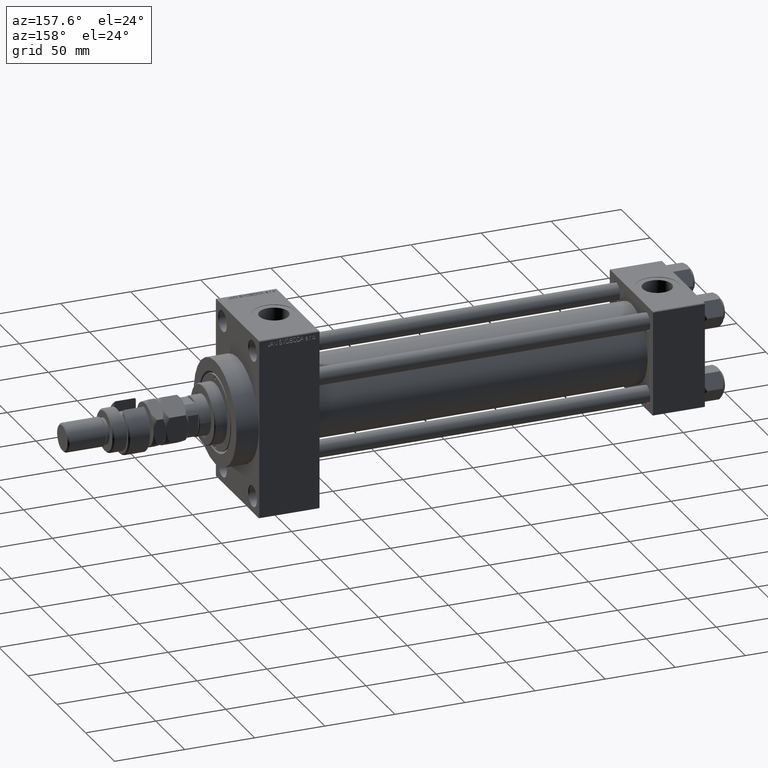
[diagram: clean part render]
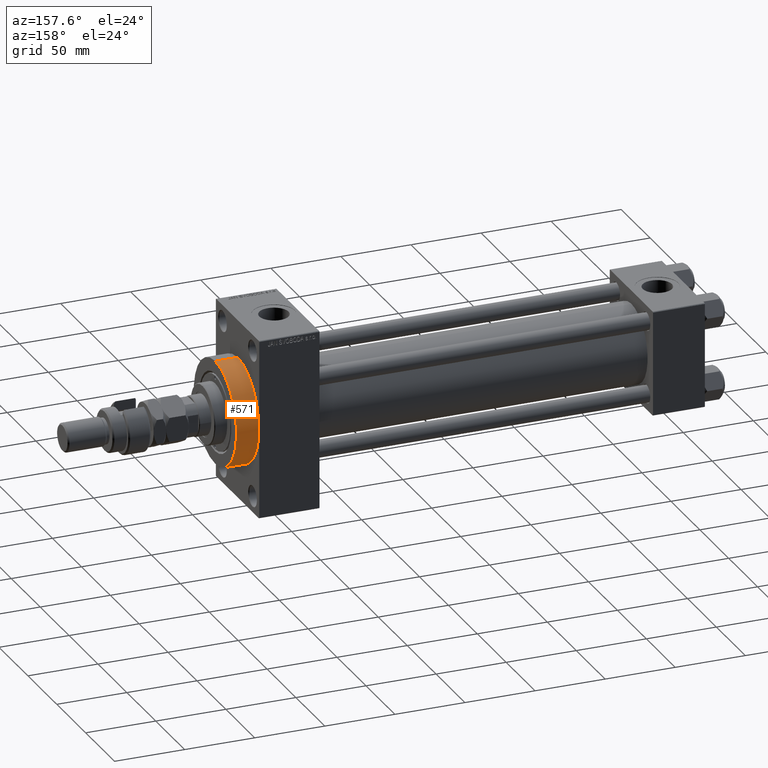
[diagram: same view with one face highlighted and labeled with its STEP entity id]
A machine part, auxiliary view. The second image highlights one B-rep face of the part: STEP entity #571.
In plain terms, the highlighted cylindrical surface (partial cylindrical patch) has radius 37 mm, axis along (-1, -0, -0).
Its self-contained STEP definition (entity closure, byte-faithful):
#571 = ADVANCED_FACE ( 'NONE', ( #43304 ), #17357, .T. ) ;
#2609 = DIRECTION ( 'NONE',  ( 1.000000000000000000, 0.000000000000000000, 0.000000000000000000 ) ) ;
#2613 = CARTESIAN_POINT ( 'NONE',  ( 317.9999999999999432, 4.531193156845206793E-15, -37.00000000000000000 ) ) ;
#3724 = ORIENTED_EDGE ( 'NONE', *, *, #35252, .T. ) ;
#5024 = DIRECTION ( 'NONE',  ( 1.000000000000000000, 0.000000000000000000, 0.000000000000000000 ) ) ;
#5481 = AXIS2_PLACEMENT_3D ( 'NONE', #28157, #5024, #28656 ) ;
#6645 = EDGE_LOOP ( 'NONE', ( #13897, #3724, #25983, #36320 ) ) ;
#7173 = CARTESIAN_POINT ( 'NONE',  ( 333.9999999999999432, 0.000000000000000000, 0.000000000000000000 ) ) ;
#8356 = CARTESIAN_POINT ( 'NONE',  ( 333.9999999999999432, 0.000000000000000000, 37.00000000000000000 ) ) ;
#10210 = CARTESIAN_POINT ( 'NONE',  ( 333.9999999999999432, 4.531193156845206793E-15, -37.00000000000000000 ) ) ;
#10602 = LINE ( 'NONE', #14914, #45543 ) ;
#13897 = ORIENTED_EDGE ( 'NONE', *, *, #26209, .F. ) ;
#14914 = CARTESIAN_POINT ( 'NONE',  ( 333.9999999999999432, 0.000000000000000000, 37.00000000000000000 ) ) ;
#14998 = VERTEX_POINT ( 'NONE', #18430 ) ;
#17357 = CYLINDRICAL_SURFACE ( 'NONE', #32592, 37.00000000000000000 ) ;
#18083 = LINE ( 'NONE', #10210, #44771 ) ;
#18219 = VERTEX_POINT ( 'NONE', #2613 ) ;
#18430 = CARTESIAN_POINT ( 'NONE',  ( 333.9999999999999432, 4.531193156845206793E-15, -37.00000000000000000 ) ) ;
#20679 = DIRECTION ( 'NONE',  ( 0.000000000000000000, 0.000000000000000000, 1.000000000000000000 ) ) ;
#25564 = EDGE_CURVE ( 'NONE', #18219, #28068, #25774, .T. ) ;
#25774 = CIRCLE ( 'NONE', #5481, 37.00000000000000000 ) ;
#25983 = ORIENTED_EDGE ( 'NONE', *, *, #25564, .T. ) ;
#26209 = EDGE_CURVE ( 'NONE', #14998, #42469, #43611, .T. ) ;
#28068 = VERTEX_POINT ( 'NONE', #38888 ) ;
#28157 = CARTESIAN_POINT ( 'NONE',  ( 317.9999999999999432, 0.000000000000000000, 0.000000000000000000 ) ) ;
#28656 = DIRECTION ( 'NONE',  ( 0.000000000000000000, 0.000000000000000000, -1.000000000000000000 ) ) ;
#28814 = CARTESIAN_POINT ( 'NONE',  ( 333.9999999999999432, 0.000000000000000000, 0.000000000000000000 ) ) ;
#30442 = DIRECTION ( 'NONE',  ( -1.000000000000000000, -0.000000000000000000, -0.000000000000000000 ) ) ;
#32592 = AXIS2_PLACEMENT_3D ( 'NONE', #28814, #35691, #20679 ) ;
#34155 = EDGE_CURVE ( 'NONE', #42469, #28068, #10602, .T. ) ;
#35252 = EDGE_CURVE ( 'NONE', #14998, #18219, #18083, .T. ) ;
#35691 = DIRECTION ( 'NONE',  ( -1.000000000000000000, -0.000000000000000000, -0.000000000000000000 ) ) ;
#36320 = ORIENTED_EDGE ( 'NONE', *, *, #34155, .F. ) ;
#38888 = CARTESIAN_POINT ( 'NONE',  ( 317.9999999999999432, 0.000000000000000000, 37.00000000000000000 ) ) ;
#42469 = VERTEX_POINT ( 'NONE', #8356 ) ;
#43304 = FACE_OUTER_BOUND ( 'NONE', #6645, .T. ) ;
#43611 = CIRCLE ( 'NONE', #50120, 37.00000000000000000 ) ;
#44771 = VECTOR ( 'NONE', #45289, 1000.000000000000000 ) ;
#45289 = DIRECTION ( 'NONE',  ( -1.000000000000000000, -0.000000000000000000, -0.000000000000000000 ) ) ;
#45543 = VECTOR ( 'NONE', #30442, 1000.000000000000000 ) ;
#45811 = DIRECTION ( 'NONE',  ( 0.000000000000000000, 0.000000000000000000, -1.000000000000000000 ) ) ;
#50120 = AXIS2_PLACEMENT_3D ( 'NONE', #7173, #2609, #45811 ) ;